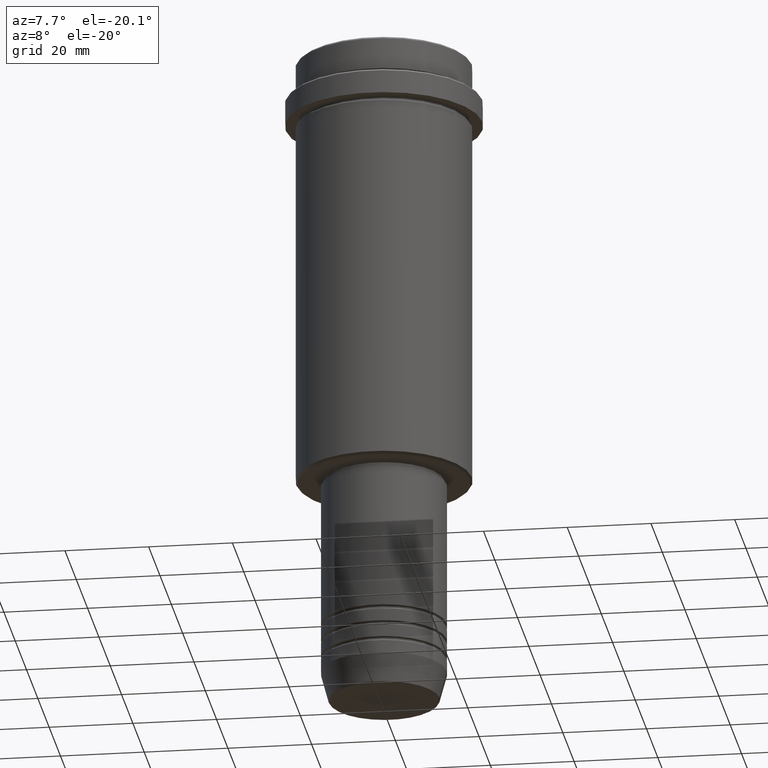
[diagram: clean part render]
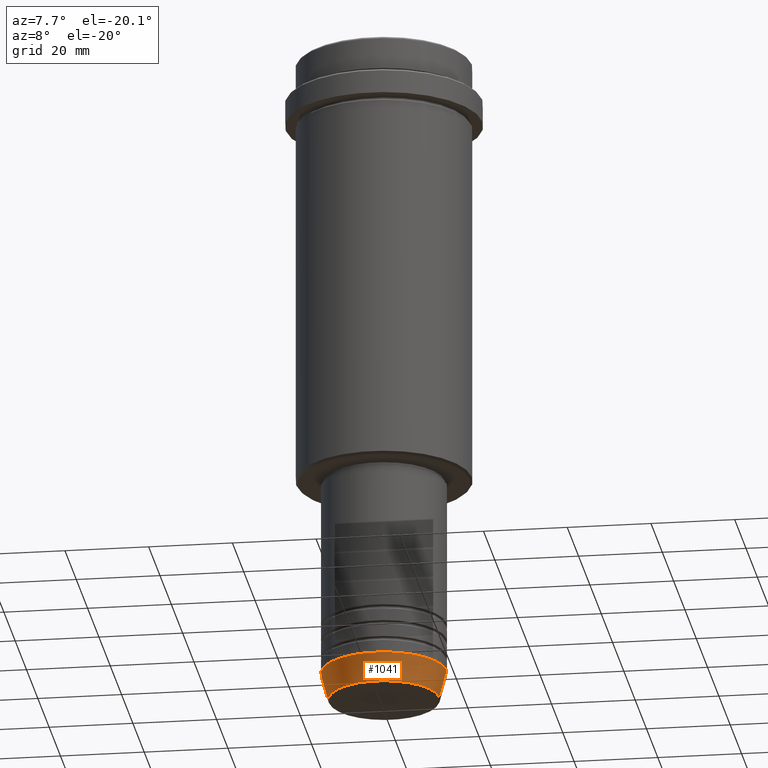
[diagram: same view with one face highlighted and labeled with its STEP entity id]
A machine part, auxiliary view. The second image highlights one B-rep face of the part: STEP entity #1041.
In plain terms, the highlighted conical surface has half-angle 15 deg.
Its self-contained STEP definition (entity closure, byte-faithful):
#10 = EDGE_LOOP ( 'NONE', ( #694, #572, #459, #1332 ) ) ;
#116 = VERTEX_POINT ( 'NONE', #1038 ) ;
#120 = DIRECTION ( 'NONE',  ( 1.000000000000000000, 0.000000000000000000, 0.000000000000000000 ) ) ;
#135 = AXIS2_PLACEMENT_3D ( 'NONE', #653, #1071, #628 ) ;
#170 = EDGE_CURVE ( 'NONE', #609, #1400, #872, .T. ) ;
#179 = AXIS2_PLACEMENT_3D ( 'NONE', #902, #1329, #120 ) ;
#186 = CARTESIAN_POINT ( 'NONE',  ( -15.00000000000000000, 1.836970198721029589E-15, -153.0000000000000000 ) ) ;
#198 = VERTEX_POINT ( 'NONE', #1091 ) ;
#301 = DIRECTION ( 'NONE',  ( 0.2588190451025213501, 0.000000000000000000, 0.9659258262890680902 ) ) ;
#304 = CARTESIAN_POINT ( 'NONE',  ( -15.00000000000000000, 1.836970198721029589E-15, -153.0000000000000000 ) ) ;
#418 = FACE_OUTER_BOUND ( 'NONE', #10, .T. ) ;
#459 = ORIENTED_EDGE ( 'NONE', *, *, #691, .T. ) ;
#518 = VECTOR ( 'NONE', #664, 1000.000000000000000 ) ;
#572 = ORIENTED_EDGE ( 'NONE', *, *, #1022, .T. ) ;
#609 = VERTEX_POINT ( 'NONE', #958 ) ;
#628 = DIRECTION ( 'NONE',  ( 1.000000000000000000, 0.000000000000000000, 0.000000000000000000 ) ) ;
#653 = CARTESIAN_POINT ( 'NONE',  ( 0.000000000000000000, 0.000000000000000000, -153.0000000000000000 ) ) ;
#664 = DIRECTION ( 'NONE',  ( -0.2588190451025213501, 3.169619151431772337E-17, 0.9659258262890680902 ) ) ;
#690 = CIRCLE ( 'NONE', #179, 15.00000000000000000 ) ;
#691 = EDGE_CURVE ( 'NONE', #198, #116, #749, .T. ) ;
#694 = ORIENTED_EDGE ( 'NONE', *, *, #170, .F. ) ;
#749 = LINE ( 'NONE', #1163, #849 ) ;
#752 = EDGE_CURVE ( 'NONE', #1400, #116, #690, .T. ) ;
#841 = DIRECTION ( 'NONE',  ( 1.000000000000000000, 0.000000000000000000, 0.000000000000000000 ) ) ;
#849 = VECTOR ( 'NONE', #301, 1000.000000000000000 ) ;
#872 = LINE ( 'NONE', #304, #518 ) ;
#902 = CARTESIAN_POINT ( 'NONE',  ( 0.000000000000000000, 0.000000000000000000, -153.0000000000000000 ) ) ;
#921 = AXIS2_PLACEMENT_3D ( 'NONE', #1168, #1395, #841 ) ;
#958 = CARTESIAN_POINT ( 'NONE',  ( -13.22365507213718772, 1.728200442216588189E-15, -159.6294095225512422 ) ) ;
#1022 = EDGE_CURVE ( 'NONE', #609, #198, #1185, .T. ) ;
#1038 = CARTESIAN_POINT ( 'NONE',  ( 15.00000000000000000, 0.000000000000000000, -153.0000000000000000 ) ) ;
#1041 = ADVANCED_FACE ( 'NONE', ( #418 ), #1055, .T. ) ;
#1055 = CONICAL_SURFACE ( 'NONE', #135, 15.00000000000000000, 0.2617993877991500740 ) ;
#1071 = DIRECTION ( 'NONE',  ( -0.000000000000000000, -0.000000000000000000, 1.000000000000000000 ) ) ;
#1091 = CARTESIAN_POINT ( 'NONE',  ( 13.22365507213718772, 0.000000000000000000, -159.6294095225512422 ) ) ;
#1163 = CARTESIAN_POINT ( 'NONE',  ( 15.00000000000000000, 0.000000000000000000, -153.0000000000000000 ) ) ;
#1168 = CARTESIAN_POINT ( 'NONE',  ( 0.000000000000000000, 0.000000000000000000, -159.6294095225512422 ) ) ;
#1185 = CIRCLE ( 'NONE', #921, 13.22365507213718772 ) ;
#1329 = DIRECTION ( 'NONE',  ( -0.000000000000000000, -0.000000000000000000, 1.000000000000000000 ) ) ;
#1332 = ORIENTED_EDGE ( 'NONE', *, *, #752, .F. ) ;
#1395 = DIRECTION ( 'NONE',  ( -0.000000000000000000, -0.000000000000000000, 1.000000000000000000 ) ) ;
#1400 = VERTEX_POINT ( 'NONE', #186 ) ;